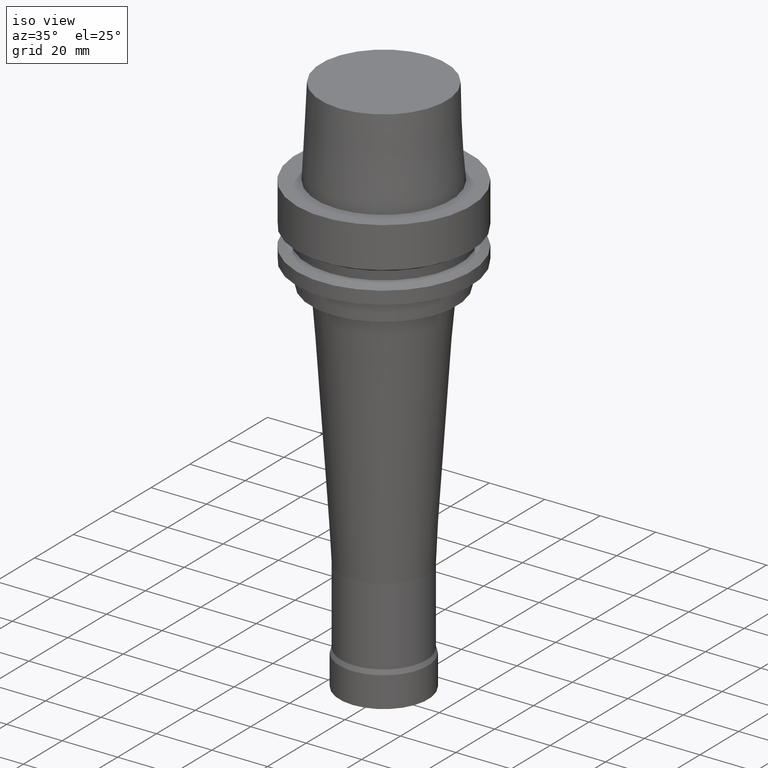
[diagram: clean part render]
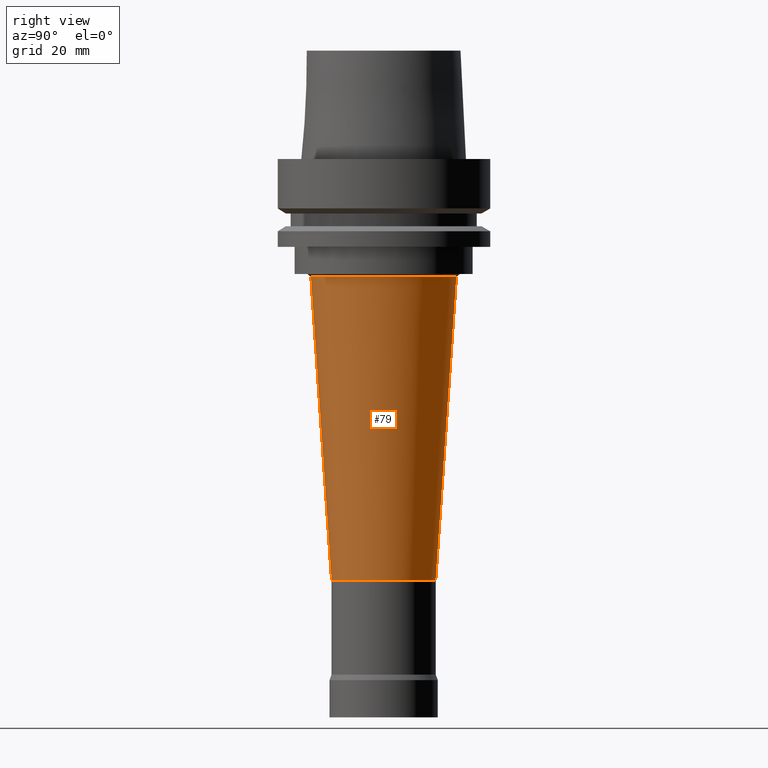
[diagram: tour spotlight — one face highlighted and labeled with its STEP entity id]
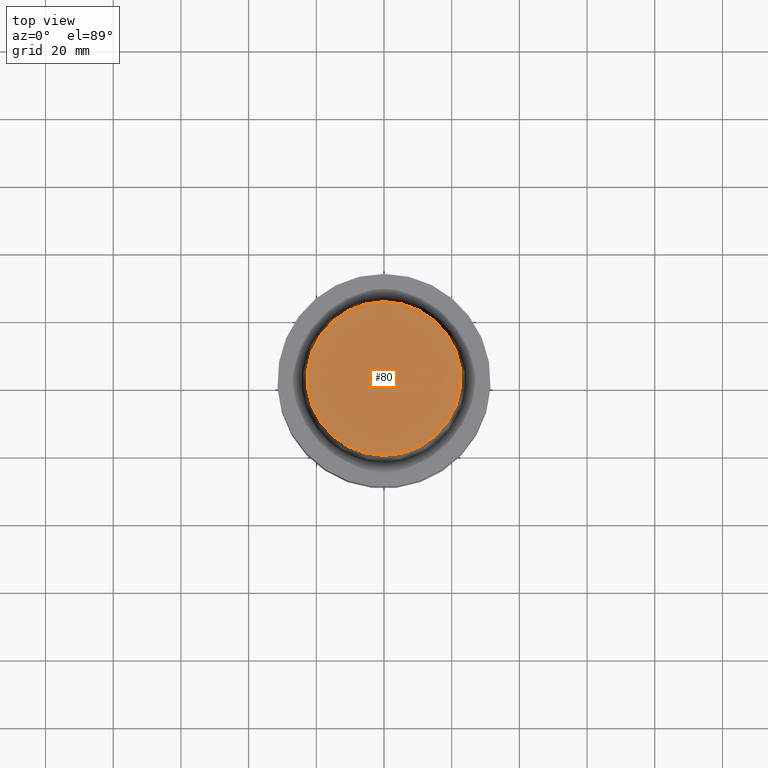
[diagram: tour spotlight — one face highlighted and labeled with its STEP entity id]
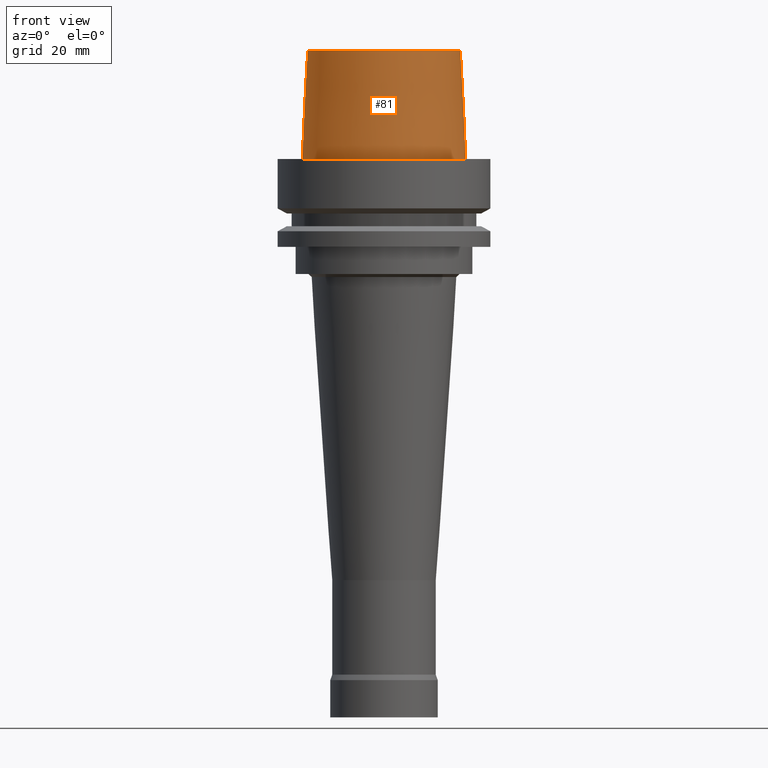
[diagram: tour spotlight — one face highlighted and labeled with its STEP entity id]
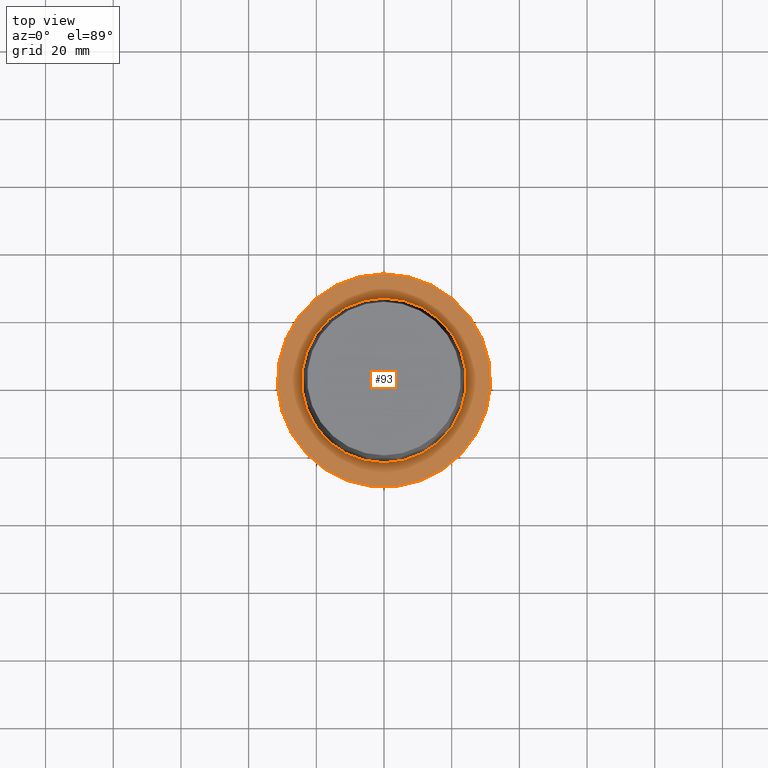
[diagram: tour spotlight — one face highlighted and labeled with its STEP entity id]
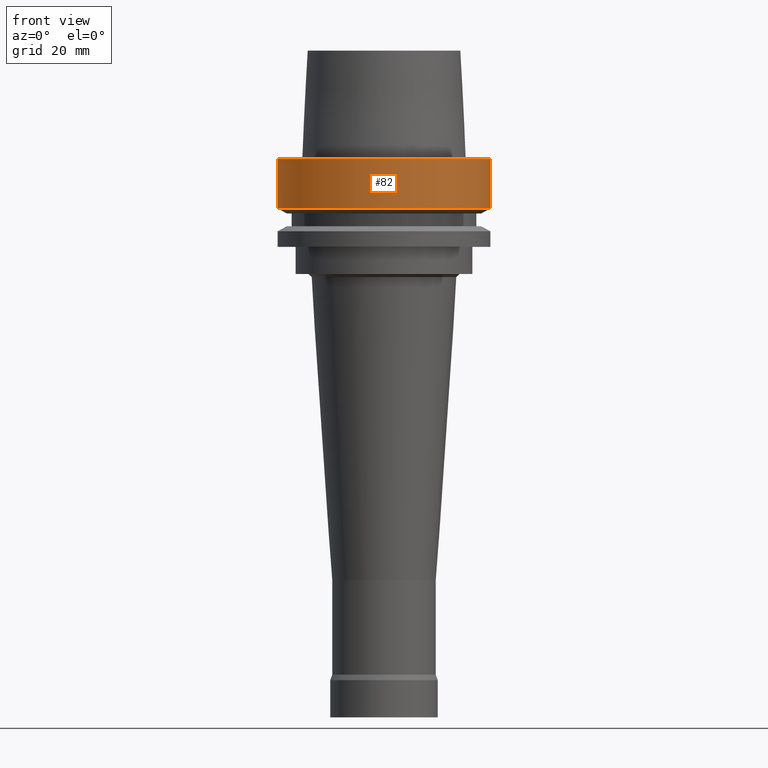
[diagram: tour spotlight — one face highlighted and labeled with its STEP entity id]
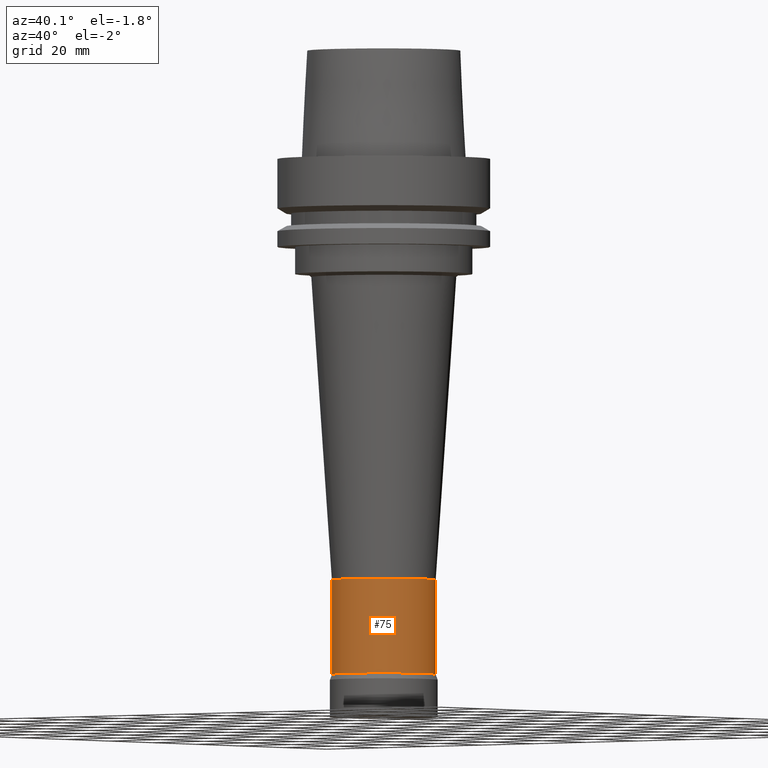
[diagram: tour spotlight — one face highlighted and labeled with its STEP entity id]
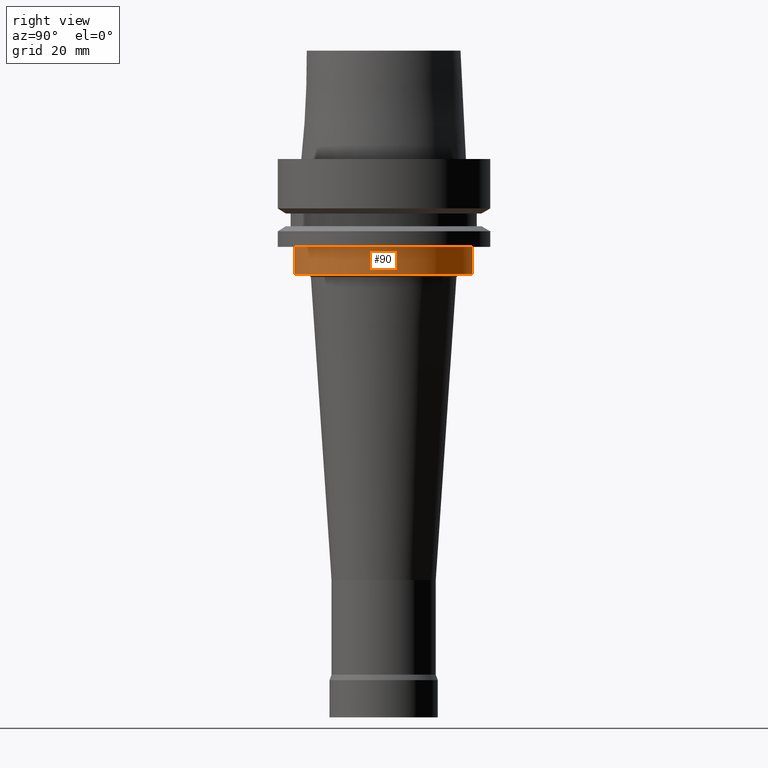
[diagram: tour spotlight — one face highlighted and labeled with its STEP entity id]
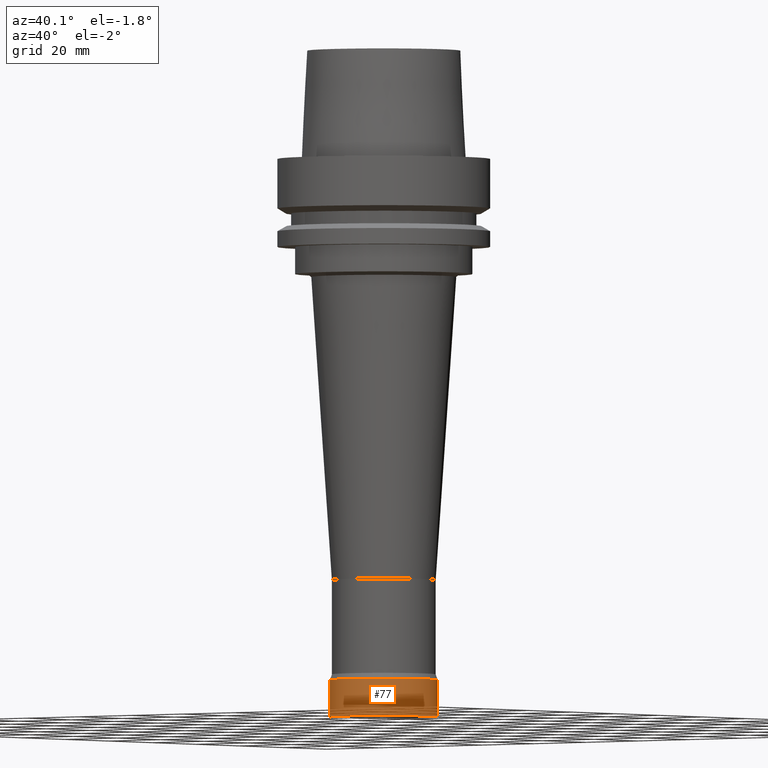
[diagram: tour spotlight — one face highlighted and labeled with its STEP entity id]
A machine part: a face-by-face anatomy tour. The part has 19 B-rep faces; the first image is the clean iso view, then the 8 largest visible faces are spotlighted one at a time (largest first), each with its STEP entity span.

Face 1 — right view, entity #79. In plain terms, the highlighted conical surface has half-angle 3.901 deg.
Definition (entity closure, byte-faithful):
#79=ADVANCED_FACE('',(#106,#107),#108,.T.);
#106=FACE_BOUND('',#161,.T.);
#107=FACE_BOUND('',#162,.T.);
#108=CONICAL_SURFACE('',#163,18.4538508653126,0.0680777378918343);
#161=EDGE_LOOP('',(#224));
#162=EDGE_LOOP('',(#225));
#163=AXIS2_PLACEMENT_3D('',#226,#227,#228);
#224=ORIENTED_EDGE('',*,*,#299,.F.);
#225=ORIENTED_EDGE('',*,*,#302,.T.);
#226=CARTESIAN_POINT('',(4.87808028606746E-015,9.75616057213492E-015,-79.6650967358714));
#227=DIRECTION('',(-6.12323399573677E-017,-1.22464679914735E-016,1.0));
#228=DIRECTION('',(-1.23259516440783E-032,1.0,1.22464679914735E-016));
#299=EDGE_CURVE('',#318,#318,#319,.T.);
#302=EDGE_CURVE('',#324,#324,#325,.T.);
#318=VERTEX_POINT('',#354);
#319=CIRCLE('',#355,15.4);
#324=VERTEX_POINT('',#360);
#325=CIRCLE('',#361,21.5077017306253);
#354=CARTESIAN_POINT('',(7.62061361235683E-015,15.4,-124.454064921618));
#355=AXIS2_PLACEMENT_3D('',#391,#392,#393);
#360=CARTESIAN_POINT('',(2.13554695977809E-015,21.5077017306253,-34.8761285501247));
#361=AXIS2_PLACEMENT_3D('',#400,#401,#402);
#391=CARTESIAN_POINT('',(7.62061361235683E-015,1.52412272247137E-014,-124.454064921618));
#392=DIRECTION('',(6.12323399573677E-017,1.22464679914735E-016,-1.0));
#393=DIRECTION('',(-1.23259516440783E-032,1.0,1.22464679914735E-016));
#400=CARTESIAN_POINT('',(2.13554695977809E-015,4.27109391955618E-015,-34.8761285501247));
#401=DIRECTION('',(6.12323399573677E-017,1.22464679914735E-016,-1.0));
#402=DIRECTION('',(-1.23259516440783E-032,1.0,1.22464679914735E-016));

Face 2 — top view, entity #80. In plain terms, the highlighted planar face has unit normal (-0, -0, 1).
Definition (entity closure, byte-faithful):
#80=ADVANCED_FACE('',(#109),#110,.T.);
#109=FACE_OUTER_BOUND('',#164,.T.);
#110=PLANE('',#165);
#164=EDGE_LOOP('',(#229));
#165=AXIS2_PLACEMENT_3D('',#230,#231,#232);
#229=ORIENTED_EDGE('',*,*,#303,.F.);
#230=CARTESIAN_POINT('',(-1.95943487863577E-015,11.3574999984407,32.0));
#231=DIRECTION('',(-6.12323399573677E-017,-1.22464679914735E-016,1.0));
#232=DIRECTION('',(1.23259516440783E-032,-1.0,-1.22464679914735E-016));
#303=EDGE_CURVE('',#326,#326,#327,.T.);
#326=VERTEX_POINT('',#362);
#327=CIRCLE('',#363,22.7149999968815);
#362=CARTESIAN_POINT('',(-1.95943487863577E-015,22.7149999968815,32.0));
#363=AXIS2_PLACEMENT_3D('',#403,#404,#405);
#403=CARTESIAN_POINT('',(-1.95943487863577E-015,-3.91886975727153E-015,32.0));
#404=DIRECTION('',(6.12323399573677E-017,1.22464679914735E-016,-1.0));
#405=DIRECTION('',(-1.23259516440783E-032,1.0,1.22464679914735E-016));

Face 3 — front view, entity #81. In plain terms, the highlighted conical surface has half-angle 2.862 deg.
Definition (entity closure, byte-faithful):
#81=ADVANCED_FACE('',(#111,#112),#113,.T.);
#111=FACE_BOUND('',#166,.T.);
#112=FACE_BOUND('',#167,.T.);
#113=CONICAL_SURFACE('',#168,23.5149999985447,0.0499583958256321);
#166=EDGE_LOOP('',(#233));
#167=EDGE_LOOP('',(#234));
#168=AXIS2_PLACEMENT_3D('',#235,#236,#237);
#233=ORIENTED_EDGE('',*,*,#304,.F.);
#234=ORIENTED_EDGE('',*,*,#303,.T.);
#235=CARTESIAN_POINT('',(-9.79717439317883E-016,-1.95943487863576E-015,16.0));
#236=DIRECTION('',(6.12323399573676E-017,1.22464679914735E-016,-1.0));
#237=DIRECTION('',(-1.23259516440783E-032,1.0,1.22464679914735E-016));
#303=EDGE_CURVE('',#326,#326,#327,.T.);
#304=EDGE_CURVE('',#328,#328,#329,.T.);
#326=VERTEX_POINT('',#362);
#327=CIRCLE('',#363,22.7149999968815);
#328=VERTEX_POINT('',#364);
#329=CIRCLE('',#365,24.3150000002079);
#362=CARTESIAN_POINT('',(-1.95943487863577E-015,22.7149999968815,32.0));
#363=AXIS2_PLACEMENT_3D('',#403,#404,#405);
#364=CARTESIAN_POINT('',(-2.99705514228327E-031,24.3150000002079,2.97772869215225E-015));
#365=AXIS2_PLACEMENT_3D('',#406,#407,#408);
#403=CARTESIAN_POINT('',(-1.95943487863577E-015,-3.91886975727153E-015,32.0));
#404=DIRECTION('',(6.12323399573677E-017,1.22464679914735E-016,-1.0));
#405=DIRECTION('',(-1.23259516440783E-032,1.0,1.22464679914735E-016));
#406=CARTESIAN_POINT('',(0.0,0.0,0.0));
#407=DIRECTION('',(6.12323399573677E-017,1.08546795432774E-016,-1.0));
#408=DIRECTION('',(-1.14737270099915E-032,1.0,1.08546795432774E-016));

Face 4 — top view, entity #93. In plain terms, the highlighted planar face has unit normal (-0, -0, 1).
Definition (entity closure, byte-faithful):
#93=ADVANCED_FACE('',(#147,#148),#149,.T.);
#147=FACE_BOUND('',#202,.T.);
#148=FACE_OUTER_BOUND('',#203,.T.);
#149=PLANE('',#204);
#202=EDGE_LOOP('',(#293));
#203=EDGE_LOOP('',(#294));
#204=AXIS2_PLACEMENT_3D('',#295,#296,#297);
#293=ORIENTED_EDGE('',*,*,#304,.T.);
#294=ORIENTED_EDGE('',*,*,#306,.F.);
#295=CARTESIAN_POINT('',(-3.40924878510528E-031,27.907500000104,3.36768305473321E-015));
#296=DIRECTION('',(-6.12323399573677E-017,-1.08546795432774E-016,1.0));
#297=DIRECTION('',(1.14737270099915E-032,-1.0,-1.08546795432774E-016));
#304=EDGE_CURVE('',#328,#328,#329,.T.);
#306=EDGE_CURVE('',#332,#332,#333,.T.);
#328=VERTEX_POINT('',#364);
#329=CIRCLE('',#365,24.3150000002079);
#332=VERTEX_POINT('',#368);
#333=CIRCLE('',#369,31.5);
#364=CARTESIAN_POINT('',(-2.99705514228327E-031,24.3150000002079,2.97772869215225E-015));
#365=AXIS2_PLACEMENT_3D('',#406,#407,#408);
#368=CARTESIAN_POINT('',(-3.8214424279273E-031,31.5,3.75763741731416E-015));
#369=AXIS2_PLACEMENT_3D('',#412,#413,#414);
#406=CARTESIAN_POINT('',(0.0,0.0,0.0));
#407=DIRECTION('',(6.12323399573677E-017,1.08546795432774E-016,-1.0));
#408=DIRECTION('',(-1.14737270099915E-032,1.0,1.08546795432774E-016));
#412=CARTESIAN_POINT('',(6.12323399573677E-033,1.22464679914735E-032,-1.0E-016));
#413=DIRECTION('',(6.12323399573677E-017,1.22464679914735E-016,-1.0));
#414=DIRECTION('',(-1.23259516440783E-032,1.0,1.22464679914735E-016));

Face 5 — front view, entity #82. In plain terms, the highlighted cylindrical surface (bore or boss wall) has radius 31.5 mm, axis along (-0, -0, 1).
Definition (entity closure, byte-faithful):
#82=ADVANCED_FACE('',(#114,#115),#116,.T.);
#114=FACE_BOUND('',#169,.T.);
#115=FACE_BOUND('',#170,.T.);
#116=CYLINDRICAL_SURFACE('',#171,31.5);
#169=EDGE_LOOP('',(#238));
#170=EDGE_LOOP('',(#239));
#171=AXIS2_PLACEMENT_3D('',#240,#241,#242);
#238=ORIENTED_EDGE('',*,*,#305,.F.);
#239=ORIENTED_EDGE('',*,*,#306,.T.);
#240=CARTESIAN_POINT('',(4.47684973986342E-016,8.95369947972684E-016,-7.311250465));
#241=DIRECTION('',(-6.12323399573677E-017,-1.22464679914735E-016,1.0));
#242=DIRECTION('',(-1.23259516440783E-032,1.0,1.22464679914735E-016));
#305=EDGE_CURVE('',#330,#330,#331,.T.);
#306=EDGE_CURVE('',#332,#332,#333,.T.);
#330=VERTEX_POINT('',#366);
#331=CIRCLE('',#367,31.5);
#332=VERTEX_POINT('',#368);
#333=CIRCLE('',#369,31.5);
#366=CARTESIAN_POINT('',(8.95369947972684E-016,31.5,-14.62250093));
#367=AXIS2_PLACEMENT_3D('',#409,#410,#411);
#368=CARTESIAN_POINT('',(-3.8214424279273E-031,31.5,3.75763741731416E-015));
#369=AXIS2_PLACEMENT_3D('',#412,#413,#414);
#409=CARTESIAN_POINT('',(8.95369947972685E-016,1.79073989594537E-015,-14.62250093));
#410=DIRECTION('',(6.12323399573677E-017,1.22464679914735E-016,-1.0));
#411=DIRECTION('',(-1.23259516440783E-032,1.0,1.22464679914735E-016));
#412=CARTESIAN_POINT('',(6.12323399573677E-033,1.22464679914735E-032,-1.0E-016));
#413=DIRECTION('',(6.12323399573677E-017,1.22464679914735E-016,-1.0));
#414=DIRECTION('',(-1.23259516440783E-032,1.0,1.22464679914735E-016));

Face 6 — auxiliary view, entity #75. In plain terms, the highlighted cylindrical surface (bore or boss wall) has radius 15.4 mm, axis along (-0, -0, 1).
Definition (entity closure, byte-faithful):
#75=ADVANCED_FACE('',(#95,#96),#97,.T.);
#95=FACE_BOUND('',#150,.T.);
#96=FACE_BOUND('',#151,.T.);
#97=CYLINDRICAL_SURFACE('',#152,15.4);
#150=EDGE_LOOP('',(#205));
#151=EDGE_LOOP('',(#206));
#152=AXIS2_PLACEMENT_3D('',#207,#208,#209);
#205=ORIENTED_EDGE('',*,*,#298,.F.);
#206=ORIENTED_EDGE('',*,*,#299,.T.);
#207=CARTESIAN_POINT('',(8.47479020897021E-015,1.69495804179404E-014,-138.403827370809));
#208=DIRECTION('',(-6.12323399573677E-017,-1.22464679914735E-016,1.0));
#209=DIRECTION('',(-1.23259516440783E-032,1.0,1.22464679914735E-016));
#298=EDGE_CURVE('',#316,#316,#317,.T.);
#299=EDGE_CURVE('',#318,#318,#319,.T.);
#316=VERTEX_POINT('',#352);
#317=CIRCLE('',#353,15.4);
#318=VERTEX_POINT('',#354);
#319=CIRCLE('',#355,15.4);
#352=CARTESIAN_POINT('',(9.32896680558359E-015,15.4,-152.35358982));
#353=AXIS2_PLACEMENT_3D('',#388,#389,#390);
#354=CARTESIAN_POINT('',(7.62061361235683E-015,15.4,-124.454064921618));
#355=AXIS2_PLACEMENT_3D('',#391,#392,#393);
#388=CARTESIAN_POINT('',(9.32896680558359E-015,1.86579336111672E-014,-152.35358982));
#389=DIRECTION('',(6.12323399573677E-017,1.22464679914735E-016,-1.0));
#390=DIRECTION('',(-1.23259516440783E-032,1.0,1.22464679914735E-016));
#391=CARTESIAN_POINT('',(7.62061361235683E-015,1.52412272247137E-014,-124.454064921618));
#392=DIRECTION('',(6.12323399573677E-017,1.22464679914735E-016,-1.0));
#393=DIRECTION('',(-1.23259516440783E-032,1.0,1.22464679914735E-016));

Face 7 — right view, entity #90. In plain terms, the highlighted cylindrical surface (bore or boss wall) has radius 26.3 mm, axis along (-0, -0, 1).
Definition (entity closure, byte-faithful):
#90=ADVANCED_FACE('',(#138,#139),#140,.T.);
#138=FACE_BOUND('',#193,.T.);
#139=FACE_BOUND('',#194,.T.);
#140=CYLINDRICAL_SURFACE('',#195,26.3);
#193=EDGE_LOOP('',(#278));
#194=EDGE_LOOP('',(#279));
#195=AXIS2_PLACEMENT_3D('',#280,#281,#282);
#278=ORIENTED_EDGE('',*,*,#314,.F.);
#279=ORIENTED_EDGE('',*,*,#313,.T.);
#280=CARTESIAN_POINT('',(1.83697019872103E-015,3.67394039744206E-015,-30.0));
#281=DIRECTION('',(-6.12323399573677E-017,-1.22464679914735E-016,1.0));
#282=DIRECTION('',(-1.23259516440783E-032,1.0,1.22464679914735E-016));
#313=EDGE_CURVE('',#346,#346,#347,.T.);
#314=EDGE_CURVE('',#348,#348,#349,.T.);
#346=VERTEX_POINT('',#382);
#347=CIRCLE('',#383,26.3);
#348=VERTEX_POINT('',#384);
#349=CIRCLE('',#385,26.3);
#382=CARTESIAN_POINT('',(1.59204083889156E-015,26.3,-26.0));
#383=AXIS2_PLACEMENT_3D('',#433,#434,#435);
#384=CARTESIAN_POINT('',(2.0818995585505E-015,26.3,-34.0));
#385=AXIS2_PLACEMENT_3D('',#436,#437,#438);
#433=CARTESIAN_POINT('',(1.59204083889156E-015,3.18408167778312E-015,-26.0));
#434=DIRECTION('',(6.12323399573677E-017,1.22464679914735E-016,-1.0));
#435=DIRECTION('',(-1.23259516440783E-032,1.0,1.22464679914735E-016));
#436=CARTESIAN_POINT('',(2.0818995585505E-015,4.163799117101E-015,-34.0));
#437=DIRECTION('',(6.12323399573677E-017,1.22464679914735E-016,-1.0));
#438=DIRECTION('',(-1.23259516440783E-032,1.0,1.22464679914735E-016));

Face 8 — auxiliary view, entity #77. In plain terms, the highlighted cylindrical surface (bore or boss wall) has radius 16 mm, axis along (-0, -0, 1).
Definition (entity closure, byte-faithful):
#77=ADVANCED_FACE('',(#101,#102),#103,.T.);
#101=FACE_BOUND('',#156,.T.);
#102=FACE_BOUND('',#157,.T.);
#103=CYLINDRICAL_SURFACE('',#158,16.0);
#156=EDGE_LOOP('',(#215));
#157=EDGE_LOOP('',(#216));
#158=AXIS2_PLACEMENT_3D('',#217,#218,#219);
#215=ORIENTED_EDGE('',*,*,#301,.F.);
#216=ORIENTED_EDGE('',*,*,#300,.T.);
#217=CARTESIAN_POINT('',(9.76655822320014E-015,1.95331164464003E-014,-159.5));
#218=DIRECTION('',(-6.12323399573677E-017,-1.22464679914735E-016,1.0));
#219=DIRECTION('',(-1.23259516440783E-032,1.0,1.22464679914735E-016));
#300=EDGE_CURVE('',#320,#320,#321,.T.);
#301=EDGE_CURVE('',#322,#322,#323,.T.);
#320=VERTEX_POINT('',#356);
#321=CIRCLE('',#357,16.0);
#322=VERTEX_POINT('',#358);
#323=CIRCLE('',#359,16.0);
#356=CARTESIAN_POINT('',(9.42978035343462E-015,16.0,-154.0));
#357=AXIS2_PLACEMENT_3D('',#394,#395,#396);
#358=CARTESIAN_POINT('',(1.01033360929657E-014,16.0,-165.0));
#359=AXIS2_PLACEMENT_3D('',#397,#398,#399);
#394=CARTESIAN_POINT('',(9.42978035343462E-015,1.88595607068692E-014,-154.0));
#395=DIRECTION('',(6.12323399573677E-017,1.22464679914735E-016,-1.0));
#396=DIRECTION('',(-1.23259516440783E-032,1.0,1.22464679914735E-016));
#397=CARTESIAN_POINT('',(1.01033360929657E-014,2.02066721859313E-014,-165.0));
#398=DIRECTION('',(6.12323399573677E-017,1.22464679914735E-016,-1.0));
#399=DIRECTION('',(-1.23259516440783E-032,1.0,1.22464679914735E-016));